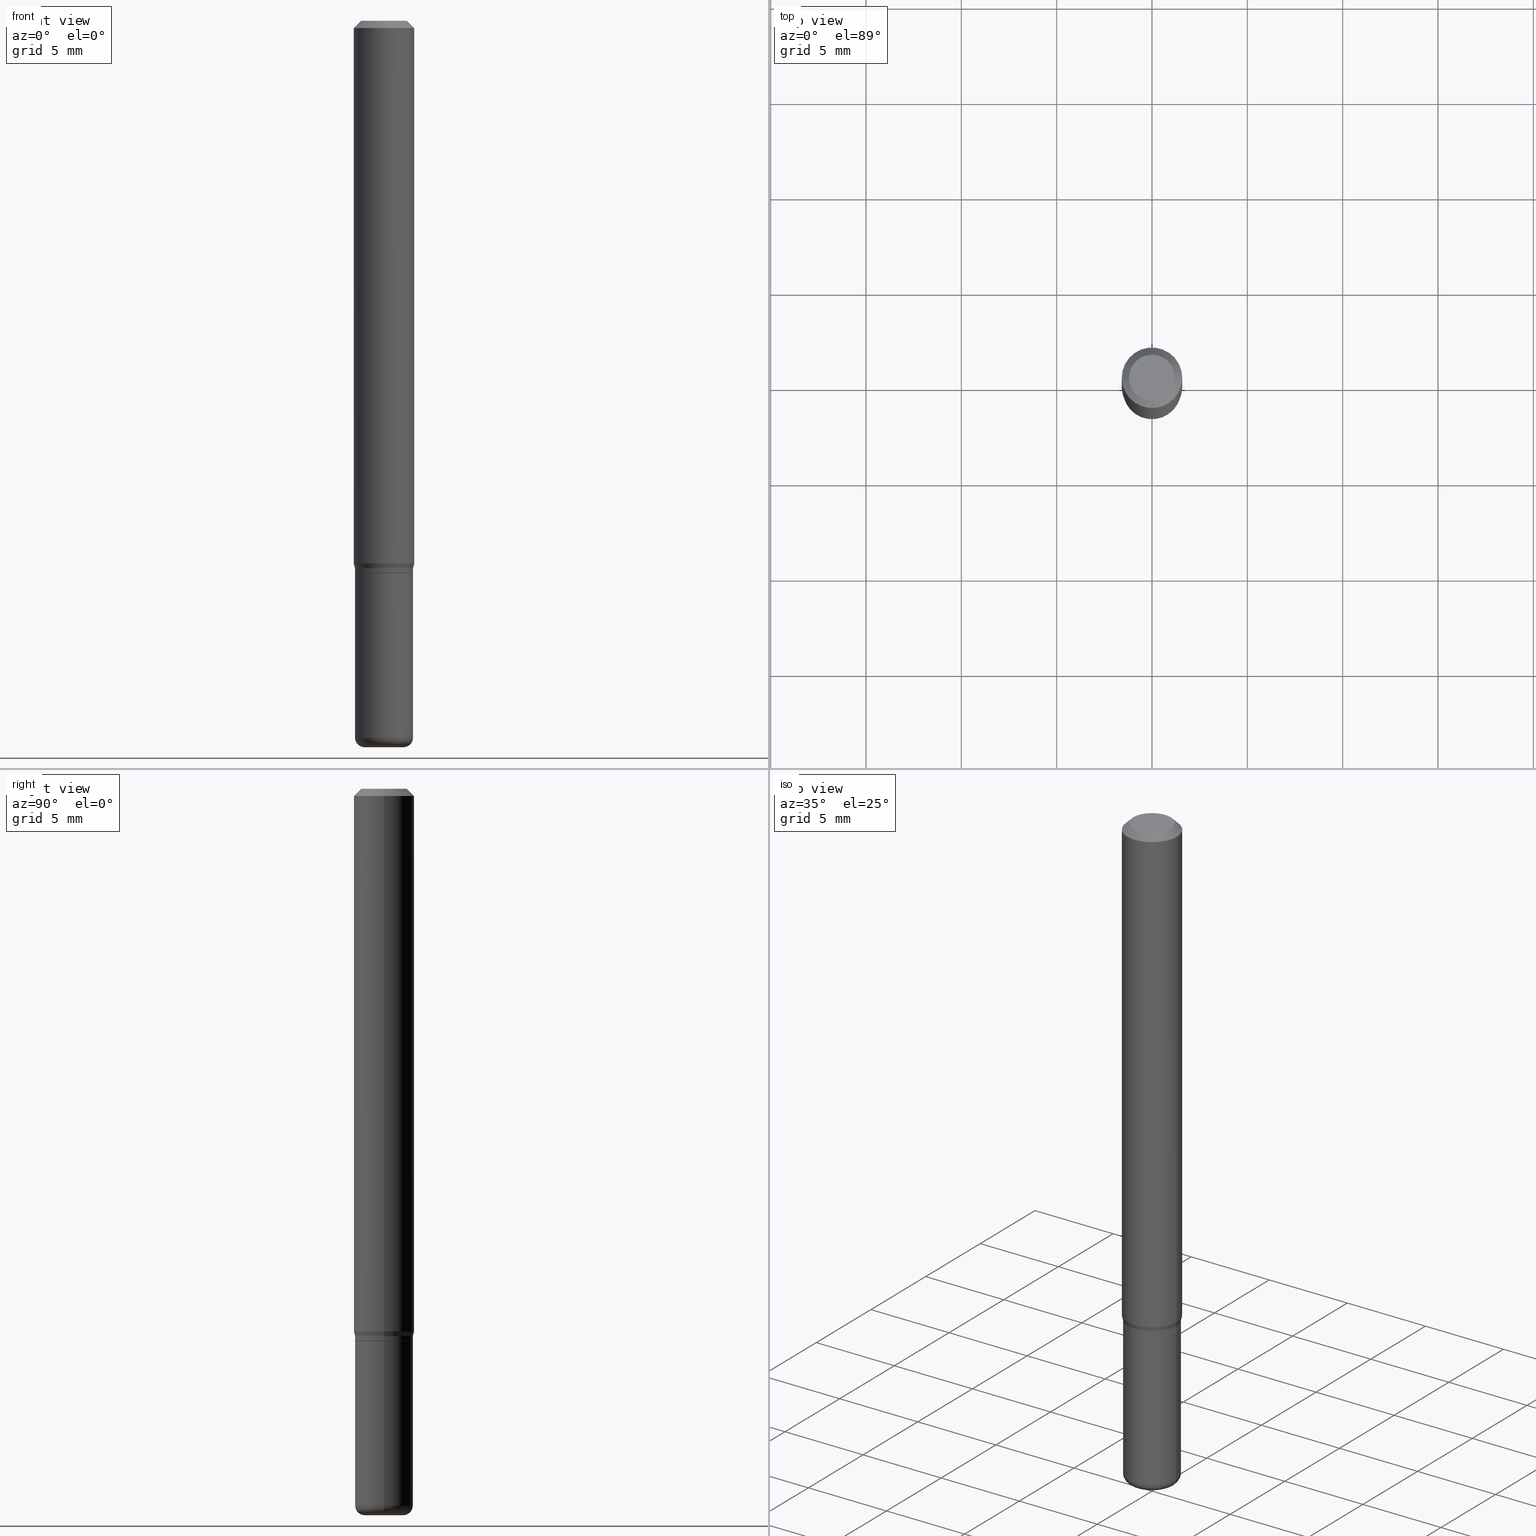
[diagram: canonical four-view strip — front | top / right | iso, engineering-drawing reading convention]
A machine part, canonical four-view strip (front | top / right | iso — engineering-drawing reading convention). The complete STEP part file that produces these views, byte-faithful:
ISO-10303-21;
HEADER;
FILE_DESCRIPTION (( 'STEP AP203' ),
    '1' );
FILE_NAME ('08779.STEP',
    '2024-02-29T21:01:41',
    ( '' ),
    ( '' ),
    'SwSTEP 2.0',
    'SolidWorks 2023',
    '' );
FILE_SCHEMA (( 'CONFIG_CONTROL_DESIGN' ));
ENDSEC;

DATA;
#1 = DIRECTION ( 'NONE',  ( 1.000000000000000000, -6.982962677686272233E-15, 0.000000000000000000 ) ) ;
#2 = CARTESIAN_POINT ( 'NONE',  ( 3.619293833154002365E-29, -5.167392381487854879E-15, -1.479999999999999982 ) ) ;
#3 = CC_DESIGN_PERSON_AND_ORGANIZATION_ASSIGNMENT ( #20, #273, ( #511 ) ) ;
#4 = CARTESIAN_POINT ( 'NONE',  ( -0.06000000000000001860, 4.263256414560602437E-16, -2.951361054152944114E-30 ) ) ;
#5 = VERTEX_POINT ( 'NONE', #137 ) ;
#6 = AXIS2_PLACEMENT_3D ( 'NONE', #342, #302, #152 ) ;
#7 = AXIS2_PLACEMENT_3D ( 'NONE', #341, #21, #305 ) ;
#8 = CARTESIAN_POINT ( 'NONE',  ( 2.787834439051055989E-29, -3.980288726281186698E-15, -1.140000000000000124 ) ) ;
#9 = ADVANCED_FACE ( 'NONE', ( #422 ), #473, .T. ) ;
#10 = ORIENTED_EDGE ( 'NONE', *, *, #371, .F. ) ;
#11 = PRODUCT_DEFINITION_SHAPE ( 'NONE', 'NONE',  #78 ) ;
#12 = ORIENTED_EDGE ( 'NONE', *, *, #468, .F. ) ;
#13 = DIRECTION ( 'NONE',  ( -2.445468806185136597E-29, 3.491481338843145583E-15, 1.000000000000000000 ) ) ;
#14 = DIRECTION ( 'NONE',  ( -2.445468806185136597E-29, 3.491481338843145583E-15, 1.000000000000000000 ) ) ;
#15 = ORIENTED_EDGE ( 'NONE', *, *, #446, .T. ) ;
#16 = CARTESIAN_POINT ( 'NONE',  ( 3.668203209277632395E-31, -5.237222008264614861E-17, -0.01499999999999970281 ) ) ;
#17 = ORIENTED_EDGE ( 'NONE', *, *, #396, .T. ) ;
#18 = DIRECTION ( 'NONE',  ( 1.000000000000000000, -6.982962677686266711E-15, 4.876176775795935793E-29 ) ) ;
#19 = FACE_OUTER_BOUND ( 'NONE', #45, .T. ) ;
#20 = PERSON_AND_ORGANIZATION ( #268, #228 ) ;
#21 = DIRECTION ( 'NONE',  ( -2.445468806185136597E-29, 3.491481338843145583E-15, 1.000000000000000000 ) ) ;
#22 = CARTESIAN_POINT ( 'NONE',  ( 2.763379750989204444E-29, -3.945373912892755049E-15, -1.130000000000000115 ) ) ;
#23 = ADVANCED_BREP_SHAPE_REPRESENTATION ( '08779', ( #440, #271, #53 ), #349 ) ;
#24 = VERTEX_POINT ( 'NONE', #179 ) ;
#25 = VECTOR ( 'NONE', #435, 39.37007874015748143 ) ;
#26 = CC_DESIGN_APPROVAL ( #102, ( #511 ) ) ;
#27 = DATE_TIME_ROLE ( 'creation_date' ) ;
#28 = FACE_OUTER_BOUND ( 'NONE', #390, .T. ) ;
#29 = CARTESIAN_POINT ( 'NONE',  ( 2.740563216406685153E-29, -3.912797948517151703E-15, -1.120669872981078008 ) ) ;
#30 = ADVANCED_FACE ( 'NONE', ( #262 ), #192, .T. ) ;
#31 = LINE ( 'NONE', #357, #335 ) ;
#32 = EDGE_CURVE ( 'NONE', #133, #467, #40, .T. ) ;
#33 = VECTOR ( 'NONE', #306, 39.37007874015748143 ) ;
#34 = CIRCLE ( 'NONE', #236, 0.04750000000000000749 ) ;
#35 = DIRECTION ( 'NONE',  ( 1.000000000000000000, -6.982962677686273810E-15, 0.000000000000000000 ) ) ;
#36 = LOCAL_TIME ( 16, 1, 41.00000000000000000, #154 ) ;
#37 = DIRECTION ( 'NONE',  ( 1.000000000000000000, -6.982962677686269077E-15, 0.000000000000000000 ) ) ;
#38 = EDGE_CURVE ( 'NONE', #112, #220, #243, .T. ) ;
#39 = ORIENTED_EDGE ( 'NONE', *, *, #147, .T. ) ;
#40 = CIRCLE ( 'NONE', #122, 0.05999999999999999778 ) ;
#41 = DIRECTION ( 'NONE',  ( 1.000000000000000000, -6.982962677686269077E-15, 0.000000000000000000 ) ) ;
#42 = AXIS2_PLACEMENT_3D ( 'NONE', #464, #196, #432 ) ;
#43 = ORIENTED_EDGE ( 'NONE', *, *, #231, .T. ) ;
#44 = FACE_OUTER_BOUND ( 'NONE', #266, .T. ) ;
#45 = EDGE_LOOP ( 'NONE', ( #370, #256, #57, #101 ) ) ;
#46 = CARTESIAN_POINT ( 'NONE',  ( 3.668203209277704895E-29, -5.237222008264718177E-15, -1.500000000000000222 ) ) ;
#47 = ORIENTED_EDGE ( 'NONE', *, *, #501, .F. ) ;
#48 = EDGE_CURVE ( 'NONE', #224, #383, #463, .T. ) ;
#49 = DIRECTION ( 'NONE',  ( 2.438088387897960049E-29, -3.491481338843145188E-15, -1.000000000000000000 ) ) ;
#50 = EDGE_LOOP ( 'NONE', ( #450, #447, #127, #338 ) ) ;
#51 = CONICAL_SURFACE ( 'NONE', #310, 0.05950000000000001815, 0.7853981633975507526 ) ;
#52 = CONICAL_SURFACE ( 'NONE', #458, 0.06250000000000000000, 0.7853981633974488341 ) ;
#53 = AXIS2_PLACEMENT_3D ( 'NONE', #345, #493, #144 ) ;
#54 = ORIENTED_EDGE ( 'NONE', *, *, #363, .F. ) ;
#55 = CARTESIAN_POINT ( 'NONE',  ( 3.668203209277632395E-31, -5.237222008264614861E-17, -0.01499999999999970281 ) ) ;
#56 = FACE_OUTER_BOUND ( 'NONE', #104, .T. ) ;
#57 = ORIENTED_EDGE ( 'NONE', *, *, #438, .F. ) ;
#58 = APPROVAL_ROLE ( '' ) ;
#59 = DIRECTION ( 'NONE',  ( -0.2588190451025239591, 5.211531920934566030E-15, 0.9659258262890674240 ) ) ;
#60 = CARTESIAN_POINT ( 'NONE',  ( 0.04750000000000000749, -4.035134999187568762E-16, 2.731847993664288856E-16 ) ) ;
#61 = EDGE_LOOP ( 'NONE', ( #83, #134, #12, #263 ) ) ;
#62 = CIRCLE ( 'NONE', #207, 0.05950000000000001815 ) ;
#63 = DIRECTION ( 'NONE',  ( 2.445468806185136597E-29, -3.491481338843145583E-15, -1.000000000000000000 ) ) ;
#64 = COORDINATED_UNIVERSAL_TIME_OFFSET ( 5, 0, .BEHIND. ) ;
#65 =( CONVERSION_BASED_UNIT ( 'INCH', #184 ) LENGTH_UNIT ( ) NAMED_UNIT ( #343 ) );
#66 = VERTEX_POINT ( 'NONE', #176 ) ;
#67 = ORIENTED_EDGE ( 'NONE', *, *, #147, .F. ) ;
#68 = PERSON_AND_ORGANIZATION ( #268, #228 ) ;
#69 = ADVANCED_FACE ( 'NONE', ( #215 ), #303, .T. ) ;
#70 = APPROVAL_ROLE ( '' ) ;
#71 = CARTESIAN_POINT ( 'NONE',  ( 0.06000000000000001860, -4.397520746272941828E-15, -1.139500000000000179 ) ) ;
#72 = VERTEX_POINT ( 'NONE', #221 ) ;
#73 = VECTOR ( 'NONE', #125, 39.37007874015748143 ) ;
#74 = CARTESIAN_POINT ( 'NONE',  ( -6.680649051745406845E-45, 9.538196290434862081E-31, 2.731847993664263218E-16 ) ) ;
#75 = CARTESIAN_POINT ( 'NONE',  ( 3.668203209277704895E-29, -5.237222008264718177E-15, -1.500000000000000222 ) ) ;
#76 = LINE ( 'NONE', #287, #95 ) ;
#77 = AXIS2_PLACEMENT_3D ( 'NONE', #182, #495, #309 ) ;
#78 = PRODUCT_DEFINITION ( 'UNKNOWN', '', #511, #486 ) ;
#79 = DIRECTION ( 'NONE',  ( -2.445468806185136877E-29, 3.491481338843145188E-15, 1.000000000000000000 ) ) ;
#80 = AXIS2_PLACEMENT_3D ( 'NONE', #339, #416, #18 ) ;
#81 = DIRECTION ( 'NONE',  ( 2.438088387897960049E-29, -3.491481338843145188E-15, -1.000000000000000000 ) ) ;
#82 = FACE_OUTER_BOUND ( 'NONE', #322, .T. ) ;
#83 = ORIENTED_EDGE ( 'NONE', *, *, #233, .T. ) ;
#84 = DIRECTION ( 'NONE',  ( 1.000000000000000000, -6.982962677686266711E-15, 4.876176775795935793E-29 ) ) ;
#85 = AXIS2_PLACEMENT_3D ( 'NONE', #29, #281, #510 ) ;
#86 = ADVANCED_FACE ( 'NONE', ( #348 ), #308, .T. ) ;
#87 = ORIENTED_EDGE ( 'NONE', *, *, #470, .T. ) ;
#88 = CARTESIAN_POINT ( 'NONE',  ( 2.763379750989204444E-29, -3.945373912892755049E-15, -1.130000000000000115 ) ) ;
#89 = ADVANCED_FACE ( 'NONE', ( #333 ), #515, .T. ) ;
#90 = LINE ( 'NONE', #475, #346 ) ;
#91 = ORIENTED_EDGE ( 'NONE', *, *, #48, .F. ) ;
#92 = CARTESIAN_POINT ( 'NONE',  ( 0.06000000000000001166, -4.189777606611760914E-16, 2.925706065477562106E-30 ) ) ;
#93 = CC_DESIGN_PERSON_AND_ORGANIZATION_ASSIGNMENT ( #174, #264, ( #330 ) ) ;
#94 = VERTEX_POINT ( 'NONE', #60 ) ;
#95 = VECTOR ( 'NONE', #288, 39.37007874015748143 ) ;
#96 = CC_DESIGN_APPROVAL ( #376, ( #78 ) ) ;
#97 = DATE_AND_TIME ( #456, #237 ) ;
#98 = CARTESIAN_POINT ( 'NONE',  ( -0.04000000000000000777, -4.847035826996236908E-15, -1.500000000000000222 ) ) ;
#99 = CYLINDRICAL_SURFACE ( 'NONE', #77, 0.06000000000000001860 ) ;
#100 =( NAMED_UNIT ( * ) SI_UNIT ( $, .STERADIAN. ) SOLID_ANGLE_UNIT ( ) );
#101 = ORIENTED_EDGE ( 'NONE', *, *, #141, .F. ) ;
#102 = APPROVAL ( #114, 'UNSPECIFIED' ) ;
#103 = MECHANICAL_CONTEXT ( 'NONE', #465, 'mechanical' ) ;
#104 = EDGE_LOOP ( 'NONE', ( #480, #413 ) ) ;
#105 = AXIS2_PLACEMENT_3D ( 'NONE', #119, #466, #35 ) ;
#106 = DIRECTION ( 'NONE',  ( 1.000000000000000000, -6.982962677686258033E-15, 0.000000000000000000 ) ) ;
#107 = DIRECTION ( 'NONE',  ( 1.000000000000000000, -6.982962677686264344E-15, 4.883557194083111780E-29 ) ) ;
#108 = EDGE_LOOP ( 'NONE', ( #513, #15, #17, #54 ) ) ;
#109 = ADVANCED_FACE ( 'NONE', ( #185 ), #299, .T. ) ;
#110 = CALENDAR_DATE ( 2024, 29, 2 ) ;
#111 = APPROVAL ( #410, 'UNSPECIFIED' ) ;
#112 = VERTEX_POINT ( 'NONE', #71 ) ;
#113 = ORIENTED_EDGE ( 'NONE', *, *, #32, .T. ) ;
#114 = APPROVAL_STATUS ( 'not_yet_approved' ) ;
#115 = DIRECTION ( 'NONE',  ( -2.445468806185136597E-29, 3.491481338843145583E-15, 1.000000000000000000 ) ) ;
#116 = CIRCLE ( 'NONE', #105, 0.05950000000000001815 ) ;
#117 = CC_DESIGN_SECURITY_CLASSIFICATION ( #399, ( #511 ) ) ;
#118 = DIRECTION ( 'NONE',  ( 1.000000000000000000, -6.982962677686269077E-15, 0.000000000000000000 ) ) ;
#119 = CARTESIAN_POINT ( 'NONE',  ( 2.787834439051055989E-29, -3.980288726281186698E-15, -1.140000000000000124 ) ) ;
#120 = EDGE_CURVE ( 'NONE', #5, #72, #428, .T. ) ;
#121 = CARTESIAN_POINT ( 'NONE',  ( 2.763379750989204444E-29, -3.945373912892755049E-15, -1.130000000000000115 ) ) ;
#122 = AXIS2_PLACEMENT_3D ( 'NONE', #148, #175, #312 ) ;
#123 = AXIS2_PLACEMENT_3D ( 'NONE', #128, #293, #402 ) ;
#124 = DIRECTION ( 'NONE',  ( -2.445468806185136597E-29, 3.491481338843145583E-15, 1.000000000000000000 ) ) ;
#125 = DIRECTION ( 'NONE',  ( -0.7071067811866199593, 7.493145998870616062E-15, 0.7071067811864750752 ) ) ;
#126 = CARTESIAN_POINT ( 'NONE',  ( 0.000000000000000000, 0.000000000000000000, 0.000000000000000000 ) ) ;
#127 = ORIENTED_EDGE ( 'NONE', *, *, #324, .T. ) ;
#128 = CARTESIAN_POINT ( 'NONE',  ( 2.787834439051055989E-29, -3.980288726281186698E-15, -1.140000000000000124 ) ) ;
#129 = ADVANCED_FACE ( 'NONE', ( #19 ), #99, .T. ) ;
#130 = CIRCLE ( 'NONE', #489, 0.06250000000000000000 ) ;
#131 = ORIENTED_EDGE ( 'NONE', *, *, #203, .T. ) ;
#132 = LOCAL_TIME ( 16, 1, 41.00000000000000000, #143 ) ;
#133 = VERTEX_POINT ( 'NONE', #259 ) ;
#134 = ORIENTED_EDGE ( 'NONE', *, *, #485, .T. ) ;
#135 = ADVANCED_FACE ( 'NONE', ( #56 ), #471, .F. ) ;
#136 = LINE ( 'NONE', #92, #193 ) ;
#137 = CARTESIAN_POINT ( 'NONE',  ( -0.06250000000000000000, -3.468708738667089875E-15, -1.120669872981078008 ) ) ;
#138 = AXIS2_PLACEMENT_3D ( 'NONE', #364, #49, #369 ) ;
#139 = LOCAL_TIME ( 16, 1, 41.00000000000000000, #223 ) ;
#140 = CARTESIAN_POINT ( 'NONE',  ( 2.786611704647963748E-29, -3.978542985611765194E-15, -1.139500000000000179 ) ) ;
#141 = EDGE_CURVE ( 'NONE', #66, #467, #31, .T. ) ;
#142 = ORIENTED_EDGE ( 'NONE', *, *, #381, .T. ) ;
#143 = COORDINATED_UNIVERSAL_TIME_OFFSET ( 5, 0, .BEHIND. ) ;
#144 = DIRECTION ( 'NONE',  ( 1.000000000000000000, 0.000000000000000000, 0.000000000000000000 ) ) ;
#145 = ADVANCED_FACE ( 'NONE', ( #507 ), #352, .T. ) ;
#146 = LINE ( 'NONE', #151, #320 ) ;
#147 = EDGE_CURVE ( 'NONE', #94, #24, #34, .T. ) ;
#148 = CARTESIAN_POINT ( 'NONE',  ( 2.787834439051055989E-29, -3.980288726281186698E-15, -1.140000000000000124 ) ) ;
#149 = ORIENTED_EDGE ( 'NONE', *, *, #242, .T. ) ;
#150 = AXIS2_PLACEMENT_3D ( 'NONE', #283, #190, #118 ) ;
#151 = CARTESIAN_POINT ( 'NONE',  ( 0.05950000000000001815, -4.395775005603519536E-15, -1.140000000000000124 ) ) ;
#152 = DIRECTION ( 'NONE',  ( 1.000000000000000000, -6.982962677686264344E-15, 4.883557194083111780E-29 ) ) ;
#153 = APPROVAL_DATE_TIME ( #240, #102 ) ;
#154 = COORDINATED_UNIVERSAL_TIME_OFFSET ( 5, 0, .BEHIND. ) ;
#155 = DIRECTION ( 'NONE',  ( -2.445468806185136597E-29, 3.491481338843145583E-15, 1.000000000000000000 ) ) ;
#156 = FACE_OUTER_BOUND ( 'NONE', #276, .T. ) ;
#157 = APPLICATION_CONTEXT ( 'configuration controlled 3d designs of mechanical parts and assemblies' ) ;
#158 = VECTOR ( 'NONE', #323, 39.37007874015748143 ) ;
#159 = CARTESIAN_POINT ( 'NONE',  ( 0.06250000000000000000, -4.811533449433669144E-16, -0.01499999999999970281 ) ) ;
#160 = CARTESIAN_POINT ( 'NONE',  ( -0.06000000000000001166, 4.263256414560601944E-16, -2.951361054152943763E-30 ) ) ;
#161 = DIRECTION ( 'NONE',  ( -2.445468806185136597E-29, 3.491481338843145583E-15, 1.000000000000000000 ) ) ;
#162 = AXIS2_PLACEMENT_3D ( 'NONE', #88, #442, #41 ) ;
#163 = PLANE ( 'NONE',  #138 ) ;
#164 = ORIENTED_EDGE ( 'NONE', *, *, #454, .F. ) ;
#165 = LINE ( 'NONE', #4, #158 ) ;
#166 = CARTESIAN_POINT ( 'NONE',  ( -0.05950000000000001815, -3.557515798503927106E-15, -1.140000000000000124 ) ) ;
#167 = ORIENTED_EDGE ( 'NONE', *, *, #242, .F. ) ;
#168 = FACE_OUTER_BOUND ( 'NONE', #388, .T. ) ;
#169 = AXIS2_PLACEMENT_3D ( 'NONE', #366, #325, #1 ) ;
#170 = EDGE_LOOP ( 'NONE', ( #455, #43, #426, #372 ) ) ;
#171 = EDGE_CURVE ( 'NONE', #220, #112, #457, .T. ) ;
#172 = CARTESIAN_POINT ( 'NONE',  ( 3.668203209277632395E-31, -5.237222008264614861E-17, -0.01499999999999970281 ) ) ;
#173 = ORIENTED_EDGE ( 'NONE', *, *, #438, .T. ) ;
#174 = PERSON_AND_ORGANIZATION ( #268, #228 ) ;
#175 = DIRECTION ( 'NONE',  ( -2.445468806185136597E-29, 3.491481338843145583E-15, 1.000000000000000000 ) ) ;
#176 = CARTESIAN_POINT ( 'NONE',  ( 0.06000000000000003247, -5.586370142149031512E-15, -1.479999999999999982 ) ) ;
#177 = AXIS2_PLACEMENT_3D ( 'NONE', #74, #124, #434 ) ;
#178 = VERTEX_POINT ( 'NONE', #314 ) ;
#179 = CARTESIAN_POINT ( 'NONE',  ( -0.04750000000000000749, 3.578768372314221353E-16, 2.731847993664239060E-16 ) ) ;
#180 = VERTEX_POINT ( 'NONE', #387 ) ;
#181 = PERSON_AND_ORGANIZATION_ROLE ( 'classification_officer' ) ;
#182 = CARTESIAN_POINT ( 'NONE',  ( 0.000000000000000000, 0.000000000000000000, 0.000000000000000000 ) ) ;
#183 = ORIENTED_EDGE ( 'NONE', *, *, #195, .T. ) ;
#184 = LENGTH_MEASURE_WITH_UNIT ( LENGTH_MEASURE( 0.02539999999999999897 ), #490 );
#185 = FACE_OUTER_BOUND ( 'NONE', #170, .T. ) ;
#186 = CIRCLE ( 'NONE', #123, 0.05999999999999999778 ) ;
#187 = APPROVAL_STATUS ( 'not_yet_approved' ) ;
#188 = DIRECTION ( 'NONE',  ( -1.000000000000000000, 7.105427357601009747E-15, 0.000000000000000000 ) ) ;
#189 = ORIENTED_EDGE ( 'NONE', *, *, #141, .T. ) ;
#190 = DIRECTION ( 'NONE',  ( -2.445468806185136597E-29, 3.491481338843145583E-15, 1.000000000000000000 ) ) ;
#191 = CARTESIAN_POINT ( 'NONE',  ( 2.786611704647963748E-29, -3.978542985611765194E-15, -1.139500000000000179 ) ) ;
#192 = CONICAL_SURFACE ( 'NONE', #481, 0.06250000000000000000, 0.7853981633974488341 ) ;
#193 = VECTOR ( 'NONE', #258, 39.37007874015748143 ) ;
#194 = DIRECTION ( 'NONE',  ( -2.445468806185136597E-29, 3.491481338843145583E-15, 1.000000000000000000 ) ) ;
#195 = EDGE_CURVE ( 'NONE', #220, #311, #439, .T. ) ;
#196 = DIRECTION ( 'NONE',  ( -2.438088387897960049E-29, 3.491481338843145188E-15, 1.000000000000000000 ) ) ;
#197 = AXIS2_PLACEMENT_3D ( 'NONE', #245, #200, #479 ) ;
#198 = DIRECTION ( 'NONE',  ( -2.445468806185136597E-29, 3.491481338843145583E-15, 1.000000000000000000 ) ) ;
#199 = ORIENTED_EDGE ( 'NONE', *, *, #48, .T. ) ;
#200 = DIRECTION ( 'NONE',  ( -2.445468806185136597E-29, 3.491481338843145583E-15, 1.000000000000000000 ) ) ;
#201 = ORIENTED_EDGE ( 'NONE', *, *, #396, .F. ) ;
#202 = DIRECTION ( 'NONE',  ( 1.000000000000000000, -6.982962677686266711E-15, 0.000000000000000000 ) ) ;
#203 = EDGE_CURVE ( 'NONE', #472, #505, #368, .T. ) ;
#204 = ORIENTED_EDGE ( 'NONE', *, *, #446, .F. ) ;
#205 = VECTOR ( 'NONE', #494, 39.37007874015748143 ) ;
#206 = DIRECTION ( 'NONE',  ( -2.445468806185136597E-29, 3.491481338843145583E-15, 1.000000000000000000 ) ) ;
#207 = AXIS2_PLACEMENT_3D ( 'NONE', #400, #206, #296 ) ;
#208 = VERTEX_POINT ( 'NONE', #514 ) ;
#209 = APPROVAL_DATE_TIME ( #218, #111 ) ;
#210 = CYLINDRICAL_SURFACE ( 'NONE', #80, 0.06000000000000001860 ) ;
#211 = ORIENTED_EDGE ( 'NONE', *, *, #468, .T. ) ;
#212 = ORIENTED_EDGE ( 'NONE', *, *, #38, .F. ) ;
#213 = CALENDAR_DATE ( 2024, 29, 2 ) ;
#214 = DIRECTION ( 'NONE',  ( 2.445468806185136597E-29, -3.491481338843145583E-15, -1.000000000000000000 ) ) ;
#215 = FACE_OUTER_BOUND ( 'NONE', #382, .T. ) ;
#216 = AXIS2_PLACEMENT_3D ( 'NONE', #358, #234, #474 ) ;
#217 = ADVANCED_FACE ( 'NONE', ( #156 ), #354, .F. ) ;
#218 = DATE_AND_TIME ( #213, #437 ) ;
#219 = DIRECTION ( 'NONE',  ( -1.000000000000000000, 6.982962677686266711E-15, 0.000000000000000000 ) ) ;
#220 = VERTEX_POINT ( 'NONE', #386 ) ;
#221 = CARTESIAN_POINT ( 'NONE',  ( -0.06250000000000000000, -1.538495874449836183E-15, -0.01499999999999970281 ) ) ;
#222 = ORIENTED_EDGE ( 'NONE', *, *, #195, .F. ) ;
#223 = COORDINATED_UNIVERSAL_TIME_OFFSET ( 5, 0, .BEHIND. ) ;
#224 = VERTEX_POINT ( 'NONE', #391 ) ;
#225 = CLOSED_SHELL ( 'NONE', ( #361, #331, #30, #69, #347, #86, #145, #506, #365, #135, #109, #423 ) ) ;
#226 = ORIENTED_EDGE ( 'NONE', *, *, #294, .T. ) ;
#227 = AXIS2_PLACEMENT_3D ( 'NONE', #389, #232, #188 ) ;
#228 = ORGANIZATION ( 'UNSPECIFIED', 'UNSPECIFIED', '' ) ;
#229 = DIRECTION ( 'NONE',  ( 1.000000000000000000, -6.982962677686266711E-15, 4.876176775795935793E-29 ) ) ;
#230 = VERTEX_POINT ( 'NONE', #512 ) ;
#231 = EDGE_CURVE ( 'NONE', #180, #230, #116, .T. ) ;
#232 = DIRECTION ( 'NONE',  ( 7.105427357601001859E-15, 1.000000000000000000, -3.491481338843145583E-15 ) ) ;
#233 = EDGE_CURVE ( 'NONE', #208, #311, #419, .T. ) ;
#234 = DIRECTION ( 'NONE',  ( -2.438088387897960049E-29, 3.491481338843145188E-15, 1.000000000000000000 ) ) ;
#235 = EDGE_CURVE ( 'NONE', #311, #208, #436, .T. ) ;
#236 = AXIS2_PLACEMENT_3D ( 'NONE', #504, #115, #317 ) ;
#237 = LOCAL_TIME ( 16, 1, 41.00000000000000000, #502 ) ;
#238 = DIRECTION ( 'NONE',  ( -2.445468806185136597E-29, 3.491481338843145583E-15, 1.000000000000000000 ) ) ;
#239 = DIRECTION ( 'NONE',  ( -2.445468806185136597E-29, 3.491481338843145583E-15, 1.000000000000000000 ) ) ;
#240 = DATE_AND_TIME ( #395, #132 ) ;
#241 = CARTESIAN_POINT ( 'NONE',  ( -0.05999999999999999084, -3.493878505051891822E-15, -1.130000000000000115 ) ) ;
#242 = EDGE_CURVE ( 'NONE', #5, #224, #393, .T. ) ;
#243 = CIRCLE ( 'NONE', #406, 0.06000000000000001860 ) ;
#244 = AXIS2_PLACEMENT_3D ( 'NONE', #431, #155, #229 ) ;
#245 = CARTESIAN_POINT ( 'NONE',  ( 3.668203209277632395E-31, -5.237222008264614861E-17, -0.01499999999999970281 ) ) ;
#246 = ORIENTED_EDGE ( 'NONE', *, *, #32, .F. ) ;
#247 = CARTESIAN_POINT ( 'NONE',  ( 0.06250000000000000000, -4.888073874380378612E-16, -0.01499999999999970281 ) ) ;
#248 = ORIENTED_EDGE ( 'NONE', *, *, #324, .F. ) ;
#249 = CYLINDRICAL_SURFACE ( 'NONE', #253, 0.06000000000000001166 ) ;
#250 = EDGE_LOOP ( 'NONE', ( #478, #443, #418, #167 ) ) ;
#251 = ADVANCED_FACE ( 'NONE', ( #28 ), #277, .F. ) ;
#252 = UNCERTAINTY_MEASURE_WITH_UNIT (LENGTH_MEASURE( 1.000000000000000082E-05 ), #65, 'distance_accuracy_value', 'NONE');
#253 = AXIS2_PLACEMENT_3D ( 'NONE', #441, #397, #445 ) ;
#254 = LINE ( 'NONE', #269, #407 ) ;
#255 = APPROVAL_PERSON_ORGANIZATION ( #332, #376, #70 ) ;
#256 = ORIENTED_EDGE ( 'NONE', *, *, #415, .T. ) ;
#257 = DATE_TIME_ROLE ( 'classification_date' ) ;
#258 = DIRECTION ( 'NONE',  ( -2.445468806185136877E-29, 3.491481338843145188E-15, 1.000000000000000000 ) ) ;
#259 = CARTESIAN_POINT ( 'NONE',  ( -0.05999999999999999778, -4.147514912428460298E-15, -1.140000000000000124 ) ) ;
#260 = ORIENTED_EDGE ( 'NONE', *, *, #363, .T. ) ;
#261 = CARTESIAN_POINT ( 'NONE',  ( 0.05999999999999999778, -4.399266486942362543E-15, -1.140000000000000124 ) ) ;
#262 = FACE_OUTER_BOUND ( 'NONE', #295, .T. ) ;
#263 = ORIENTED_EDGE ( 'NONE', *, *, #297, .F. ) ;
#264 = PERSON_AND_ORGANIZATION_ROLE ( 'design_owner' ) ;
#265 = AXIS2_PLACEMENT_3D ( 'NONE', #373, #459, #107 ) ;
#266 = EDGE_LOOP ( 'NONE', ( #374, #142, #212, #164 ) ) ;
#267 = CONICAL_SURFACE ( 'NONE', #162, 0.05999999999999999084, 0.2617993877991527385 ) ;
#268 = PERSON ( 'UNSPECIFIED', 'UNSPECIFIED', 'UNSPECIFIED', ('UNSPECIFIED'), ('UNSPECIFIED'), ('UNSPECIFIED') ) ;
#269 = CARTESIAN_POINT ( 'NONE',  ( -0.05999999999999999084, -3.519048271436694953E-15, -1.130000000000000115 ) ) ;
#270 = EDGE_CURVE ( 'NONE', #94, #383, #318, .T. ) ;
#271 = MANIFOLD_SOLID_BREP ( 'Body-Move/Copy2[2]', #225 ) ;
#272 = ORIENTED_EDGE ( 'NONE', *, *, #470, .F. ) ;
#273 = PERSON_AND_ORGANIZATION_ROLE ( 'creator' ) ;
#274 = PERSON_AND_ORGANIZATION ( #268, #228 ) ;
#275 = DIRECTION ( 'NONE',  ( -2.445468806185136597E-29, 3.491481338843145583E-15, 1.000000000000000000 ) ) ;
#276 = EDGE_LOOP ( 'NONE', ( #173, #113 ) ) ;
#277 = PLANE ( 'NONE',  #42 ) ;
#278 = CLOSED_SHELL ( 'NONE', ( #89, #129, #217, #508, #9, #251 ) ) ;
#279 = AXIS2_PLACEMENT_3D ( 'NONE', #75, #238, #469 ) ;
#280 = APPROVAL_PERSON_ORGANIZATION ( #404, #102, #282 ) ;
#281 = DIRECTION ( 'NONE',  ( -2.445468806185136597E-29, 3.491481338843145583E-15, 1.000000000000000000 ) ) ;
#282 = APPROVAL_ROLE ( '' ) ;
#283 = CARTESIAN_POINT ( 'NONE',  ( 2.763379750989204444E-29, -3.945373912892755049E-15, -1.130000000000000115 ) ) ;
#284 = DIRECTION ( 'NONE',  ( 0.7071067811865479058, -7.319954787623257623E-15, -0.7071067811865471286 ) ) ;
#285 = CIRCLE ( 'NONE', #177, 0.04750000000000000749 ) ;
#286 = EDGE_CURVE ( 'NONE', #505, #178, #327, .T. ) ;
#287 = CARTESIAN_POINT ( 'NONE',  ( 0.05999999999999999084, -4.364351673553930894E-15, -1.130000000000000115 ) ) ;
#288 = DIRECTION ( 'NONE',  ( 0.2588190451025239591, 1.565188264969601063E-15, 0.9659258262890674240 ) ) ;
#289 = DIRECTION ( 'NONE',  ( -2.445468806185136597E-29, 3.491481338843145583E-15, 1.000000000000000000 ) ) ;
#290 = ORIENTED_EDGE ( 'NONE', *, *, #429, .T. ) ;
#291 = CC_DESIGN_DATE_AND_TIME_ASSIGNMENT ( #503, #27, ( #78 ) ) ;
#292 = CIRCLE ( 'NONE', #356, 0.04000000000000000777 ) ;
#293 = DIRECTION ( 'NONE',  ( -2.445468806185136597E-29, 3.491481338843145583E-15, 1.000000000000000000 ) ) ;
#294 = EDGE_CURVE ( 'NONE', #24, #94, #285, .T. ) ;
#295 = EDGE_LOOP ( 'NONE', ( #67, #492, #290, #248 ) ) ;
#296 = DIRECTION ( 'NONE',  ( 1.000000000000000000, -6.982962677686273810E-15, 0.000000000000000000 ) ) ;
#297 = EDGE_CURVE ( 'NONE', #208, #224, #76, .T. ) ;
#298 = ORIENTED_EDGE ( 'NONE', *, *, #233, .F. ) ;
#299 = CONICAL_SURFACE ( 'NONE', #496, 0.05950000000000001815, 0.7853981633975507526 ) ;
#300 = AXIS2_PLACEMENT_3D ( 'NONE', #191, #194, #355 ) ;
#301 = DIRECTION ( 'NONE',  ( 1.000000000000000000, -6.982962677686262766E-15, 0.000000000000000000 ) ) ;
#302 = DIRECTION ( 'NONE',  ( -2.445468806185136597E-29, 3.491481338843145583E-15, 1.000000000000000000 ) ) ;
#303 = CYLINDRICAL_SURFACE ( 'NONE', #319, 0.06250000000000000000 ) ;
#304 = EDGE_LOOP ( 'NONE', ( #131, #484, #47, #201 ) ) ;
#305 = DIRECTION ( 'NONE',  ( 1.000000000000000000, -6.982962677686264344E-15, 0.000000000000000000 ) ) ;
#306 = DIRECTION ( 'NONE',  ( -2.445468806185136877E-29, 3.491481338843145188E-15, 1.000000000000000000 ) ) ;
#307 = SECURITY_CLASSIFICATION_LEVEL ( 'unclassified' ) ;
#308 = CONICAL_SURFACE ( 'NONE', #367, 0.05999999999999999084, 0.2617993877991527385 ) ;
#309 = DIRECTION ( 'NONE',  ( 1.000000000000000000, -6.982962677686266711E-15, 4.876176775795935793E-29 ) ) ;
#310 = AXIS2_PLACEMENT_3D ( 'NONE', #8, #239, #483 ) ;
#311 = VERTEX_POINT ( 'NONE', #241 ) ;
#312 = DIRECTION ( 'NONE',  ( 1.000000000000000000, -6.982962677686268288E-15, 0.000000000000000000 ) ) ;
#313 = PERSON_AND_ORGANIZATION ( #268, #228 ) ;
#314 = CARTESIAN_POINT ( 'NONE',  ( -0.06000000000000003247, -4.147514912428460298E-15, -1.479999999999999982 ) ) ;
#315 = DIRECTION ( 'NONE',  ( -1.000000000000000000, 6.982962677686265922E-15, -4.876176775795935793E-29 ) ) ;
#316 = CIRCLE ( 'NONE', #448, 0.06250000000000000000 ) ;
#317 = DIRECTION ( 'NONE',  ( 1.000000000000000000, -6.982962677686266711E-15, 4.852736867747365086E-29 ) ) ;
#318 = LINE ( 'NONE', #159, #430 ) ;
#319 = AXIS2_PLACEMENT_3D ( 'NONE', #425, #452, #337 ) ;
#320 = VECTOR ( 'NONE', #487, 39.37007874015748143 ) ;
#321 = LINE ( 'NONE', #166, #73 ) ;
#322 = EDGE_LOOP ( 'NONE', ( #409, #183, #298, #272 ) ) ;
#323 = DIRECTION ( 'NONE',  ( -2.445468806185136877E-29, 3.491481338843145188E-15, 1.000000000000000000 ) ) ;
#324 = EDGE_CURVE ( 'NONE', #24, #72, #90, .T. ) ;
#325 = DIRECTION ( 'NONE',  ( -6.982962677686266711E-15, -1.000000000000000000, 3.491481338843145583E-15 ) ) ;
#326 = EDGE_LOOP ( 'NONE', ( #226, #39 ) ) ;
#327 = CIRCLE ( 'NONE', #227, 0.02000000000000003511 ) ;
#328 = DIRECTION ( 'NONE',  ( -2.445468806185136597E-29, 3.491481338843145583E-15, 1.000000000000000000 ) ) ;
#329 = DIRECTION ( 'NONE',  ( -2.445468806185136597E-29, 3.491481338843145583E-15, 1.000000000000000000 ) ) ;
#330 = PRODUCT ( '08779', '08779', '', ( #103 ) ) ;
#331 = ADVANCED_FACE ( 'NONE', ( #44 ), #51, .T. ) ;
#332 = PERSON_AND_ORGANIZATION ( #268, #228 ) ;
#333 = FACE_OUTER_BOUND ( 'NONE', #304, .T. ) ;
#334 = EDGE_CURVE ( 'NONE', #230, #180, #62, .T. ) ;
#335 = VECTOR ( 'NONE', #79, 39.37007874015748143 ) ;
#336 = CARTESIAN_POINT ( 'NONE',  ( 0.04000000000000000777, -5.516540515372169003E-15, -1.500000000000000222 ) ) ;
#337 = DIRECTION ( 'NONE',  ( 1.000000000000000000, -6.982962677686266711E-15, 4.876176775795935793E-29 ) ) ;
#338 = ORIENTED_EDGE ( 'NONE', *, *, #371, .T. ) ;
#339 = CARTESIAN_POINT ( 'NONE',  ( 0.000000000000000000, 0.000000000000000000, 0.000000000000000000 ) ) ;
#340 = CC_DESIGN_DATE_AND_TIME_ASSIGNMENT ( #97, #257, ( #399 ) ) ;
#341 = CARTESIAN_POINT ( 'NONE',  ( 3.619293833154002365E-29, -5.167392381487854879E-15, -1.479999999999999982 ) ) ;
#342 = CARTESIAN_POINT ( 'NONE',  ( 3.619293833154002365E-29, -5.167392381487854879E-15, -1.479999999999999982 ) ) ;
#343 = DIMENSIONAL_EXPONENTS ( 1.000000000000000000, 0.000000000000000000, 0.000000000000000000, 0.000000000000000000, 0.000000000000000000, 0.000000000000000000, 0.000000000000000000 ) ;
#344 = SHAPE_DEFINITION_REPRESENTATION ( #11, #23 ) ;
#345 = CARTESIAN_POINT ( 'NONE',  ( 0.000000000000000000, 0.000000000000000000, 0.000000000000000000 ) ) ;
#346 = VECTOR ( 'NONE', #360, 39.37007874015748143 ) ;
#347 = ADVANCED_FACE ( 'NONE', ( #516 ), #267, .T. ) ;
#348 = FACE_OUTER_BOUND ( 'NONE', #250, .T. ) ;
#349 =( GEOMETRIC_REPRESENTATION_CONTEXT ( 3 ) GLOBAL_UNCERTAINTY_ASSIGNED_CONTEXT ( ( #252 ) ) GLOBAL_UNIT_ASSIGNED_CONTEXT ( ( #65, #379, #100 ) ) REPRESENTATION_CONTEXT ( 'NONE', 'WORKASPACE' ) );
#350 = ORIENTED_EDGE ( 'NONE', *, *, #203, .F. ) ;
#351 = DATE_AND_TIME ( #427, #36 ) ;
#352 = CYLINDRICAL_SURFACE ( 'NONE', #244, 0.06250000000000000000 ) ;
#353 = ORIENTED_EDGE ( 'NONE', *, *, #429, .F. ) ;
#354 = PLANE ( 'NONE',  #498 ) ;
#355 = DIRECTION ( 'NONE',  ( 1.000000000000000000, -6.982962677686265922E-15, 0.000000000000000000 ) ) ;
#356 = AXIS2_PLACEMENT_3D ( 'NONE', #46, #328, #106 ) ;
#357 = CARTESIAN_POINT ( 'NONE',  ( 0.06000000000000001860, -4.189777606611761407E-16, 2.925706065477562457E-30 ) ) ;
#358 = CARTESIAN_POINT ( 'NONE',  ( 2.787834439051055989E-29, -3.980288726281186698E-15, -1.140000000000000124 ) ) ;
#359 = PRODUCT_RELATED_PRODUCT_CATEGORY ( 'detail', '', ( #330 ) ) ;
#360 = DIRECTION ( 'NONE',  ( -0.7071067811865479058, 2.468850131082261005E-15, -0.7071067811865471286 ) ) ;
#361 = ADVANCED_FACE ( 'NONE', ( #82 ), #249, .T. ) ;
#362 = DIRECTION ( 'NONE',  ( 1.000000000000000000, -6.982962677686264344E-15, 0.000000000000000000 ) ) ;
#363 = EDGE_CURVE ( 'NONE', #178, #66, #499, .T. ) ;
#364 = CARTESIAN_POINT ( 'NONE',  ( 3.316907271900976589E-16, 0.04750000000000000749, -2.925296391183627249E-17 ) ) ;
#365 = ADVANCED_FACE ( 'NONE', ( #403 ), #163, .F. ) ;
#366 = CARTESIAN_POINT ( 'NONE',  ( 0.04000000000000000083, -5.446710888595305705E-15, -1.479999999999999982 ) ) ;
#367 = AXIS2_PLACEMENT_3D ( 'NONE', #22, #275, #488 ) ;
#368 = CIRCLE ( 'NONE', #279, 0.04000000000000000777 ) ;
#369 = DIRECTION ( 'NONE',  ( -1.000000000000000000, 6.982962677686265922E-15, -4.876176775795935793E-29 ) ) ;
#370 = ORIENTED_EDGE ( 'NONE', *, *, #501, .T. ) ;
#371 = EDGE_CURVE ( 'NONE', #72, #383, #316, .T. ) ;
#372 = ORIENTED_EDGE ( 'NONE', *, *, #171, .F. ) ;
#373 = CARTESIAN_POINT ( 'NONE',  ( 3.619293833154002365E-29, -5.167392381487854879E-15, -1.479999999999999982 ) ) ;
#374 = ORIENTED_EDGE ( 'NONE', *, *, #334, .T. ) ;
#375 = CIRCLE ( 'NONE', #169, 0.02000000000000003511 ) ;
#376 = APPROVAL ( #187, 'UNSPECIFIED' ) ;
#377 = DIRECTION ( 'NONE',  ( -2.445468806185136597E-29, 3.491481338843145583E-15, 1.000000000000000000 ) ) ;
#378 = ORIENTED_EDGE ( 'NONE', *, *, #120, .T. ) ;
#379 =( NAMED_UNIT ( * ) PLANE_ANGLE_UNIT ( ) SI_UNIT ( $, .RADIAN. ) );
#380 = CARTESIAN_POINT ( 'NONE',  ( 0.06250000000000000000, -4.364351673553916694E-16, 3.047610484872459871E-30 ) ) ;
#381 = EDGE_CURVE ( 'NONE', #180, #220, #321, .T. ) ;
#382 = EDGE_LOOP ( 'NONE', ( #211, #378, #353, #91 ) ) ;
#383 = VERTEX_POINT ( 'NONE', #247 ) ;
#384 = PERSON_AND_ORGANIZATION_ROLE ( 'creator' ) ;
#385 = AXIS2_PLACEMENT_3D ( 'NONE', #121, #161, #37 ) ;
#386 = CARTESIAN_POINT ( 'NONE',  ( -0.06000000000000001860, -3.552217344155705099E-15, -1.139500000000000179 ) ) ;
#387 = CARTESIAN_POINT ( 'NONE',  ( -0.05950000000000001815, -3.554866571329815905E-15, -1.140000000000000124 ) ) ;
#388 = EDGE_LOOP ( 'NONE', ( #222, #398, #87, #401 ) ) ;
#389 = CARTESIAN_POINT ( 'NONE',  ( -0.04000000000000000083, -4.883175287183815341E-15, -1.479999999999999982 ) ) ;
#390 = EDGE_LOOP ( 'NONE', ( #350, #204 ) ) ;
#391 = CARTESIAN_POINT ( 'NONE',  ( 0.06250000000000000000, -4.349233115872544161E-15, -1.120669872981078008 ) ) ;
#392 = EDGE_LOOP ( 'NONE', ( #460, #260, #189, #246 ) ) ;
#393 = CIRCLE ( 'NONE', #85, 0.06250000000000000000 ) ;
#394 = CARTESIAN_POINT ( 'NONE',  ( 4.189777606612038494E-16, 0.05999999999999602179, -1.140000000000000346 ) ) ;
#395 = CALENDAR_DATE ( 2024, 29, 2 ) ;
#396 = EDGE_CURVE ( 'NONE', #472, #66, #375, .T. ) ;
#397 = DIRECTION ( 'NONE',  ( -2.445468806185136597E-29, 3.491481338843145583E-15, 1.000000000000000000 ) ) ;
#398 = ORIENTED_EDGE ( 'NONE', *, *, #171, .T. ) ;
#399 = SECURITY_CLASSIFICATION ( '', '', #307 ) ;
#400 = CARTESIAN_POINT ( 'NONE',  ( 2.787834439051055989E-29, -3.980288726281186698E-15, -1.140000000000000124 ) ) ;
#401 = ORIENTED_EDGE ( 'NONE', *, *, #235, .F. ) ;
#402 = DIRECTION ( 'NONE',  ( 1.000000000000000000, -6.982962677686268288E-15, 0.000000000000000000 ) ) ;
#403 = FACE_OUTER_BOUND ( 'NONE', #326, .T. ) ;
#404 = PERSON_AND_ORGANIZATION ( #268, #228 ) ;
#405 = EDGE_LOOP ( 'NONE', ( #476, #149, #199, #10 ) ) ;
#406 = AXIS2_PLACEMENT_3D ( 'NONE', #140, #14, #417 ) ;
#407 = VECTOR ( 'NONE', #59, 39.37007874015748143 ) ;
#408 = FACE_OUTER_BOUND ( 'NONE', #392, .T. ) ;
#409 = ORIENTED_EDGE ( 'NONE', *, *, #38, .T. ) ;
#410 = APPROVAL_STATUS ( 'not_yet_approved' ) ;
#411 = FACE_OUTER_BOUND ( 'NONE', #50, .T. ) ;
#412 = CARTESIAN_POINT ( 'NONE',  ( -0.06250000000000000000, 4.440892098500626162E-16, -3.074334431409316114E-30 ) ) ;
#413 = ORIENTED_EDGE ( 'NONE', *, *, #231, .F. ) ;
#414 = PERSON_AND_ORGANIZATION ( #268, #228 ) ;
#415 = EDGE_CURVE ( 'NONE', #178, #133, #165, .T. ) ;
#416 = DIRECTION ( 'NONE',  ( -2.445468806185136597E-29, 3.491481338843145583E-15, 1.000000000000000000 ) ) ;
#417 = DIRECTION ( 'NONE',  ( 1.000000000000000000, -6.982962677686265922E-15, 0.000000000000000000 ) ) ;
#418 = ORIENTED_EDGE ( 'NONE', *, *, #297, .T. ) ;
#419 = CIRCLE ( 'NONE', #385, 0.05999999999999999084 ) ;
#420 = APPLICATION_PROTOCOL_DEFINITION ( 'international standard', 'config_control_design', 1994, #157 ) ;
#421 = CC_DESIGN_APPROVAL ( #111, ( #399 ) ) ;
#422 = FACE_OUTER_BOUND ( 'NONE', #108, .T. ) ;
#423 = ADVANCED_FACE ( 'NONE', ( #168 ), #477, .T. ) ;
#424 = CARTESIAN_POINT ( 'NONE',  ( 2.740563216406685153E-29, -3.912797948517151703E-15, -1.120669872981078008 ) ) ;
#425 = CARTESIAN_POINT ( 'NONE',  ( 0.000000000000000000, 0.000000000000000000, 0.000000000000000000 ) ) ;
#426 = ORIENTED_EDGE ( 'NONE', *, *, #454, .T. ) ;
#427 = CALENDAR_DATE ( 2024, 29, 2 ) ;
#428 = LINE ( 'NONE', #412, #205 ) ;
#429 = EDGE_CURVE ( 'NONE', #383, #72, #509, .T. ) ;
#430 = VECTOR ( 'NONE', #284, 39.37007874015748143 ) ;
#431 = CARTESIAN_POINT ( 'NONE',  ( 0.000000000000000000, 0.000000000000000000, 0.000000000000000000 ) ) ;
#432 = DIRECTION ( 'NONE',  ( 1.000000000000000000, -6.982962677686265922E-15, 4.876176775795935793E-29 ) ) ;
#433 = CC_DESIGN_PERSON_AND_ORGANIZATION_ASSIGNMENT ( #313, #181, ( #399 ) ) ;
#434 = DIRECTION ( 'NONE',  ( 1.000000000000000000, -6.982962677686266711E-15, 4.852736867747365086E-29 ) ) ;
#435 = DIRECTION ( 'NONE',  ( -2.445468806185136877E-29, 3.491481338843145188E-15, 1.000000000000000000 ) ) ;
#436 = CIRCLE ( 'NONE', #150, 0.05999999999999999084 ) ;
#437 = LOCAL_TIME ( 16, 1, 41.00000000000000000, #64 ) ;
#438 = EDGE_CURVE ( 'NONE', #467, #133, #186, .T. ) ;
#439 = LINE ( 'NONE', #160, #25 ) ;
#440 = MANIFOLD_SOLID_BREP ( 'Body-Move/Copy2[1]', #278 ) ;
#441 = CARTESIAN_POINT ( 'NONE',  ( 0.000000000000000000, 0.000000000000000000, 0.000000000000000000 ) ) ;
#442 = DIRECTION ( 'NONE',  ( -2.445468806185136597E-29, 3.491481338843145583E-15, 1.000000000000000000 ) ) ;
#443 = ORIENTED_EDGE ( 'NONE', *, *, #235, .T. ) ;
#444 = AXIS2_PLACEMENT_3D ( 'NONE', #126, #289, #84 ) ;
#445 = DIRECTION ( 'NONE',  ( 1.000000000000000000, -6.982962677686266711E-15, 4.876176775795935793E-29 ) ) ;
#446 = EDGE_CURVE ( 'NONE', #505, #472, #292, .T. ) ;
#447 = ORIENTED_EDGE ( 'NONE', *, *, #294, .F. ) ;
#448 = AXIS2_PLACEMENT_3D ( 'NONE', #172, #329, #202 ) ;
#449 = CARTESIAN_POINT ( 'NONE',  ( 2.787834439051055989E-29, -3.980288726281186698E-15, -1.140000000000000124 ) ) ;
#450 = ORIENTED_EDGE ( 'NONE', *, *, #270, .F. ) ;
#451 = PERSON_AND_ORGANIZATION_ROLE ( 'design_supplier' ) ;
#452 = DIRECTION ( 'NONE',  ( -2.445468806185136597E-29, 3.491481338843145583E-15, 1.000000000000000000 ) ) ;
#453 = APPLICATION_PROTOCOL_DEFINITION ( 'international standard', 'config_control_design', 1994, #465 ) ;
#454 = EDGE_CURVE ( 'NONE', #230, #112, #146, .T. ) ;
#455 = ORIENTED_EDGE ( 'NONE', *, *, #381, .F. ) ;
#456 = CALENDAR_DATE ( 2024, 29, 2 ) ;
#457 = CIRCLE ( 'NONE', #300, 0.06000000000000001860 ) ;
#458 = AXIS2_PLACEMENT_3D ( 'NONE', #55, #214, #219 ) ;
#459 = DIRECTION ( 'NONE',  ( -2.445468806185136597E-29, 3.491481338843145583E-15, 1.000000000000000000 ) ) ;
#460 = ORIENTED_EDGE ( 'NONE', *, *, #415, .F. ) ;
#461 = APPROVAL_DATE_TIME ( #351, #376 ) ;
#462 = CC_DESIGN_PERSON_AND_ORGANIZATION_ASSIGNMENT ( #68, #451, ( #511 ) ) ;
#463 = LINE ( 'NONE', #380, #33 ) ;
#464 = CARTESIAN_POINT ( 'NONE',  ( 3.582686580359766038E-29, -5.359686688179453325E-15, -1.500000000000000222 ) ) ;
#465 = APPLICATION_CONTEXT ( 'configuration controlled 3d designs of mechanical parts and assemblies' ) ;
#466 = DIRECTION ( 'NONE',  ( -2.445468806185136597E-29, 3.491481338843145583E-15, 1.000000000000000000 ) ) ;
#467 = VERTEX_POINT ( 'NONE', #261 ) ;
#468 = EDGE_CURVE ( 'NONE', #224, #5, #130, .T. ) ;
#469 = DIRECTION ( 'NONE',  ( 1.000000000000000000, -6.982962677686258033E-15, 0.000000000000000000 ) ) ;
#470 = EDGE_CURVE ( 'NONE', #112, #208, #136, .T. ) ;
#471 = PLANE ( 'NONE',  #216 ) ;
#472 = VERTEX_POINT ( 'NONE', #336 ) ;
#473 = TOROIDAL_SURFACE ( 'NONE', #265, 0.04000000000000000083, 0.02000000000000003511 ) ;
#474 = DIRECTION ( 'NONE',  ( 1.000000000000000000, -6.982962677686265922E-15, 4.876176775795935793E-29 ) ) ;
#475 = CARTESIAN_POINT ( 'NONE',  ( -0.06250000000000000000, 3.840629472727455270E-16, -0.01499999999999970281 ) ) ;
#476 = ORIENTED_EDGE ( 'NONE', *, *, #120, .F. ) ;
#477 = CYLINDRICAL_SURFACE ( 'NONE', #444, 0.06000000000000001166 ) ;
#478 = ORIENTED_EDGE ( 'NONE', *, *, #485, .F. ) ;
#479 = DIRECTION ( 'NONE',  ( 1.000000000000000000, -6.982962677686266711E-15, 0.000000000000000000 ) ) ;
#480 = ORIENTED_EDGE ( 'NONE', *, *, #334, .F. ) ;
#481 = AXIS2_PLACEMENT_3D ( 'NONE', #16, #63, #491 ) ;
#482 = CIRCLE ( 'NONE', #7, 0.06000000000000003247 ) ;
#483 = DIRECTION ( 'NONE',  ( 1.000000000000000000, -6.982962677686273810E-15, 0.000000000000000000 ) ) ;
#484 = ORIENTED_EDGE ( 'NONE', *, *, #286, .T. ) ;
#485 = EDGE_CURVE ( 'NONE', #311, #5, #254, .T. ) ;
#486 = DESIGN_CONTEXT ( 'detailed design', #157, 'design' ) ;
#487 = DIRECTION ( 'NONE',  ( 0.7071067811866199593, -2.468850131083015945E-15, 0.7071067811864750752 ) ) ;
#488 = DIRECTION ( 'NONE',  ( 1.000000000000000000, -6.982962677686269077E-15, 0.000000000000000000 ) ) ;
#489 = AXIS2_PLACEMENT_3D ( 'NONE', #424, #13, #301 ) ;
#490 =( LENGTH_UNIT ( ) NAMED_UNIT ( * ) SI_UNIT ( $, .METRE. ) );
#491 = DIRECTION ( 'NONE',  ( -1.000000000000000000, 6.982962677686266711E-15, 0.000000000000000000 ) ) ;
#492 = ORIENTED_EDGE ( 'NONE', *, *, #270, .T. ) ;
#493 = DIRECTION ( 'NONE',  ( 0.000000000000000000, 0.000000000000000000, 1.000000000000000000 ) ) ;
#494 = DIRECTION ( 'NONE',  ( -2.445468806185136877E-29, 3.491481338843145188E-15, 1.000000000000000000 ) ) ;
#495 = DIRECTION ( 'NONE',  ( -2.445468806185136597E-29, 3.491481338843145583E-15, 1.000000000000000000 ) ) ;
#496 = AXIS2_PLACEMENT_3D ( 'NONE', #449, #377, #500 ) ;
#497 = CC_DESIGN_PERSON_AND_ORGANIZATION_ASSIGNMENT ( #274, #384, ( #78 ) ) ;
#498 = AXIS2_PLACEMENT_3D ( 'NONE', #394, #81, #315 ) ;
#499 = CIRCLE ( 'NONE', #517, 0.06000000000000003247 ) ;
#500 = DIRECTION ( 'NONE',  ( 1.000000000000000000, -6.982962677686273810E-15, 0.000000000000000000 ) ) ;
#501 = EDGE_CURVE ( 'NONE', #66, #178, #482, .T. ) ;
#502 = COORDINATED_UNIVERSAL_TIME_OFFSET ( 5, 0, .BEHIND. ) ;
#503 = DATE_AND_TIME ( #110, #139 ) ;
#504 = CARTESIAN_POINT ( 'NONE',  ( -6.680649051745406845E-45, 9.538196290434862081E-31, 2.731847993664263218E-16 ) ) ;
#505 = VERTEX_POINT ( 'NONE', #98 ) ;
#506 = ADVANCED_FACE ( 'NONE', ( #411 ), #52, .T. ) ;
#507 = FACE_OUTER_BOUND ( 'NONE', #405, .T. ) ;
#508 = ADVANCED_FACE ( 'NONE', ( #408 ), #210, .T. ) ;
#509 = CIRCLE ( 'NONE', #197, 0.06250000000000000000 ) ;
#510 = DIRECTION ( 'NONE',  ( 1.000000000000000000, -6.982962677686262766E-15, 0.000000000000000000 ) ) ;
#511 = PRODUCT_DEFINITION_FORMATION_WITH_SPECIFIED_SOURCE ( 'ANY', '', #330, .NOT_KNOWN. ) ;
#512 = CARTESIAN_POINT ( 'NONE',  ( 0.05950000000000001815, -4.395775005603519536E-15, -1.140000000000000124 ) ) ;
#513 = ORIENTED_EDGE ( 'NONE', *, *, #286, .F. ) ;
#514 = CARTESIAN_POINT ( 'NONE',  ( 0.05999999999999999084, -4.364351673553930894E-15, -1.130000000000000115 ) ) ;
#515 = TOROIDAL_SURFACE ( 'NONE', #6, 0.04000000000000000083, 0.02000000000000003511 ) ;
#516 = FACE_OUTER_BOUND ( 'NONE', #61, .T. ) ;
#517 = AXIS2_PLACEMENT_3D ( 'NONE', #2, #198, #362 ) ;
#518 = APPROVAL_PERSON_ORGANIZATION ( #414, #111, #58 ) ;
ENDSEC;
END-ISO-10303-21;
